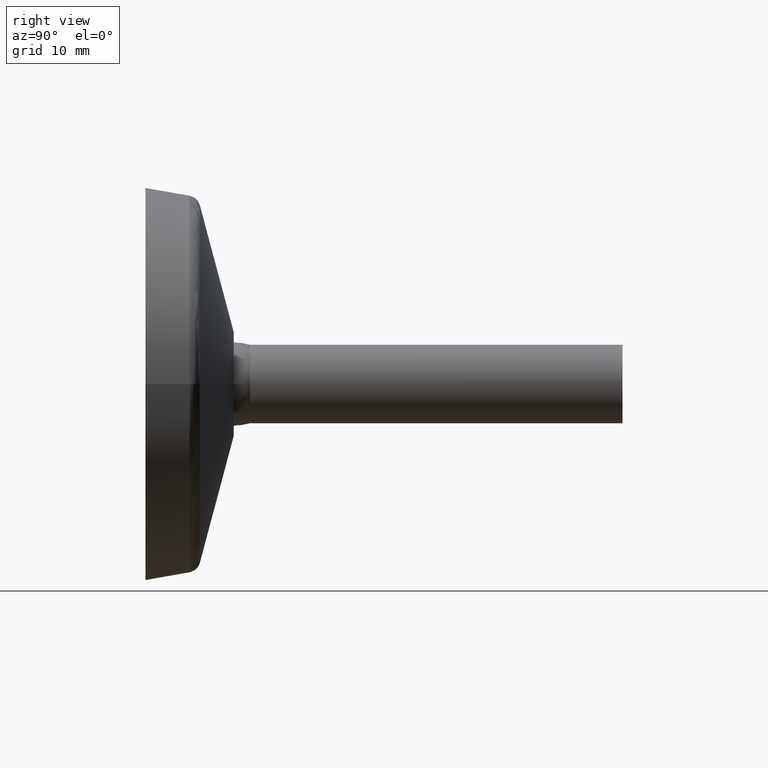
[diagram: clean part render]
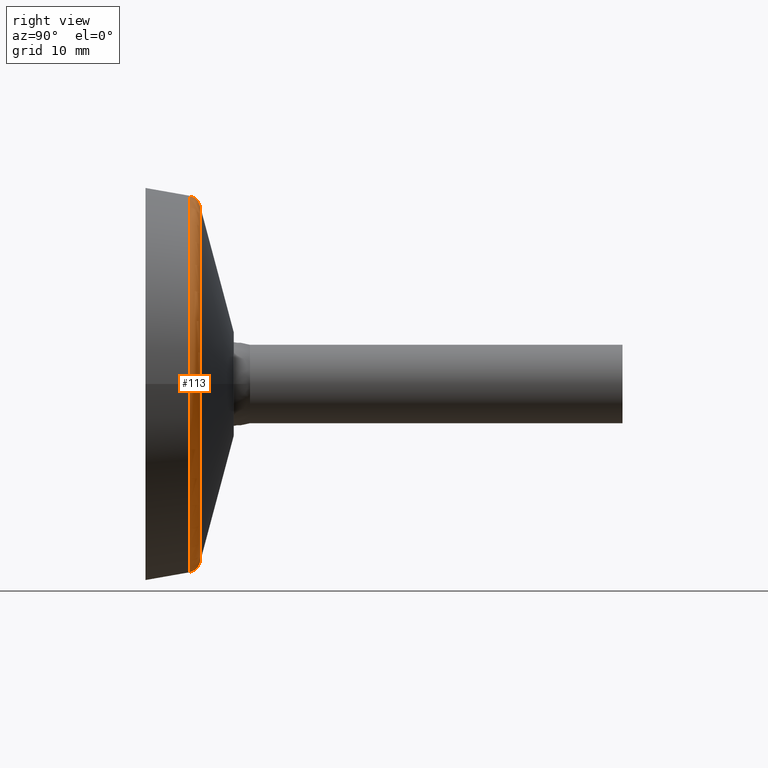
[diagram: same view with one face highlighted and labeled with its STEP entity id]
A machine part, right view. The second image highlights one B-rep face of the part: STEP entity #113.
In plain terms, the highlighted toroidal blend (fillet) surface has major radius 26.8412 mm and minor (blend) radius 2 mm.
Its self-contained STEP definition (entity closure, byte-faithful):
#36=FACE_BOUND('',#59,.T.);
#41=TOROIDAL_SURFACE('',#130,26.8412079674655,2.);
#46=FACE_OUTER_BOUND('',#58,.T.);
#58=EDGE_LOOP('',(#98));
#59=EDGE_LOOP('',(#99));
#70=CIRCLE('',#128,27.357365361832);
#71=CIRCLE('',#131,28.8108234734899);
#78=VERTEX_POINT('',#200);
#79=VERTEX_POINT('',#204);
#86=EDGE_CURVE('',#78,#78,#70,.T.);
#87=EDGE_CURVE('',#79,#79,#71,.T.);
#98=ORIENTED_EDGE('',*,*,#86,.T.);
#99=ORIENTED_EDGE('',*,*,#87,.T.);
#113=ADVANCED_FACE('',(#46,#36),#41,.T.);
#128=AXIS2_PLACEMENT_3D('',#201,#158,#159);
#130=AXIS2_PLACEMENT_3D('',#203,#162,#163);
#131=AXIS2_PLACEMENT_3D('',#205,#164,#165);
#158=DIRECTION('center_axis',(-1.,0.,0.));
#159=DIRECTION('ref_axis',(0.,0.,-1.));
#162=DIRECTION('center_axis',(-1.,0.,0.));
#163=DIRECTION('ref_axis',(0.,0.,1.));
#164=DIRECTION('center_axis',(1.,0.,0.));
#165=DIRECTION('ref_axis',(0.,0.,-1.));
#200=CARTESIAN_POINT('',(8.32910665554443,0.,27.357365361832));
#201=CARTESIAN_POINT('Origin',(8.32910665554443,-3.35031099234722E-15,0.));
#203=CARTESIAN_POINT('Origin',(6.39685885977888,0.,0.));
#204=CARTESIAN_POINT('',(6.74415521511274,-7.05661654952177E-15,28.8108234734899));
#205=CARTESIAN_POINT('Origin',(6.74415521511274,-3.52830827476089E-15,0.));